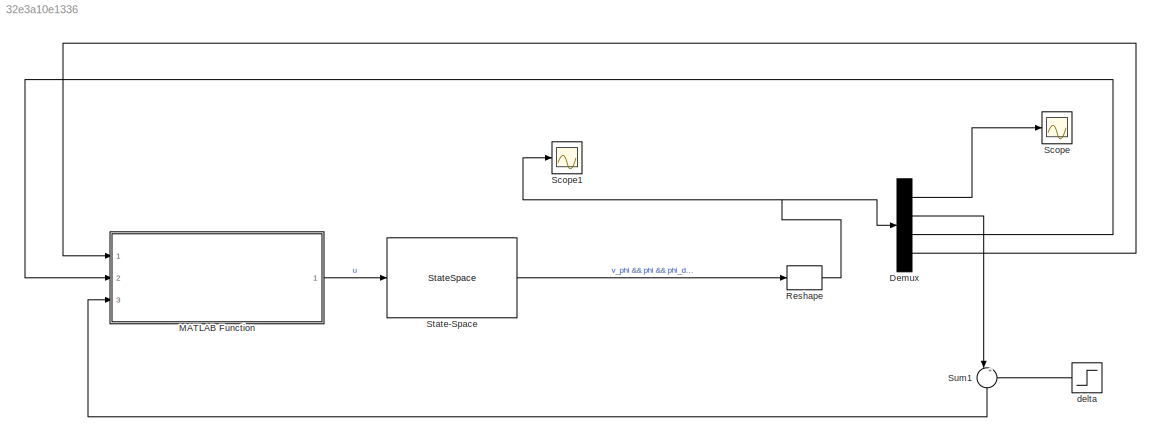
MODEL slx_32e3a10e1336
KIND model
CONFIG AbsTol = auto
CONFIG EnableMultiTasking = off
CONFIG FixedStep = auto
CONFIG MaxStep = auto
CONFIG MinStep = auto
CONFIG RelTol = 1e-3
CONFIG SampleTimeConstraint = Unconstrained
CONFIG SolverName = FixedStepAuto
CONFIG StartTime = 0.0
CONFIG StopTime = 3
BLOCK [Demux] Demux
  Ports = [1, 4]
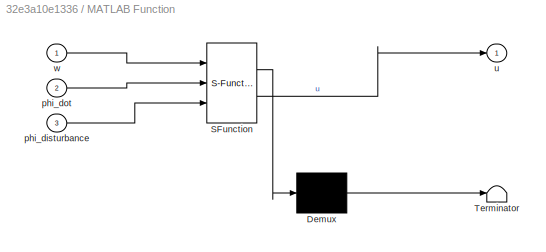
BLOCK [SubSystem] MATLAB Function
  ErrorFcn = Stateflow.Translate.translate
  PermitHierarchicalResolution = ExplicitOnly
  Ports = [3, 1]
  RequestExecContextInheritance = off
  SFBlockType = MATLAB Function
  TreatAsAtomicUnit = on
BLOCK [Demux] MATLAB Function/ Demux 
  Outputs = 1
  Ports = [1, 1]
BLOCK [S-Function] MATLAB Function/ SFunction 
  EnableBusSupport = on
  FunctionName = sf_sfun
  PortCounts = [3 2]
  Ports = [3, 2]
  SFcnIsStateOwnerBlock = off
  SFunctionDeploymentMode = off
  Tag = Stateflow S-Function 2
BLOCK [Terminator] MATLAB Function/ Terminator 
BLOCK [Inport] MATLAB Function/phi_disturbance
  Port = 3
BLOCK [Inport] MATLAB Function/phi_dot
  Port = 2
BLOCK [Outport] MATLAB Function/u
BLOCK [Inport] MATLAB Function/w
BLOCK [Reshape] Reshape
  OutputDimensionality = Row vector (2-D)
  OutputDimensions = [1,4]
  Ports = [1, 1]
BLOCK [Scope] Scope
  Floating = off
  NumInputPorts = 1
  Ports = [1]
  ScopeSpecificationString = Simulink.scopes.TimeScopeBlockCfg('CurrentConfiguration', extmgr.ConfigurationSet(extmgr.Configuration('Core','General UI',true),extmgr.Configuration('Core','Source UI',true),extmgr.Configuration('Sources','WiredSimulink',true),extmgr.Configuration('Visuals','Time Domain',true,'SerializedDisplays',{struct('MinYLimReal','-15479635150426747669845574301271366625535258113543580130469537615381948927384...<+3705ch>
BLOCK [Scope] Scope1
  Floating = off
  NumInputPorts = 1
  Ports = [1]
  ScopeSpecificationString = Simulink.scopes.TimeScopeBlockCfg('CurrentConfiguration', extmgr.ConfigurationSet(extmgr.Configuration('Core','General UI',true),extmgr.Configuration('Core','Source UI',true),extmgr.Configuration('Sources','WiredSimulink',true,'DataLoggingVariableName','ScopeData1'),extmgr.Configuration('Visuals','Time Domain',true,'SerializedDisplays',{struct('MinYLimReal','-10188273568326295007185001132288331204...<+3848ch>
BLOCK [StateSpace] State-Space
  A = [0 1 0; 23.5031 0 0.0045; -23.5031 0 -19.9513]
  B = [0; 0.1393; -621.6819]
  C = [107.47 0 0;1 0 0; 0 1 0; 0 0 1]
  D = [0;0;0;0]
  InitialCondition = [0.0019 0 0]
  Ports = [1, 1]
BLOCK [Sum] Sum1
  Inputs = |++
  NameLocation = left
  Ports = [2, 1]
BLOCK [Step] delta
  After = 0.2
  Before = 0.1
  NameLocation = top
  SampleTime = 0
  Time = 1.5
LINE Demux:1 -> Scope:1
LINE Demux:2 -> Sum1:1
LINE Demux:3 -> MATLAB Function:2
LINE Demux:4 -> MATLAB Function:1
LINE MATLAB Function:1 -> State-Space:1
NET Reshape:1 -> Demux:1, Scope1:1
LINE State-Space:1 -> Reshape:1
LINE Sum1:1 -> MATLAB Function:3
LINE delta:1 -> Sum1:2
note: NET lines group one-source signal fan-out (src -> all destinations, sorted); 1:1 wires keep LINE
CHART MATLAB Function states=1 transitions=1
  STATE_LABEL 'eML_blk_kernel()'
  STATE_LABEL 'SCRIPT:\nfunction u = state_feedback_control_law(w,phi_dot, phi_disturbance)\n\nK=[2.29*10.^3 4.72*10.^2 0.08]\nx=[w;phi_dot;phi_disturbance]\n\nu = -K*x;\n'
CHART  states=0 transitions=0
